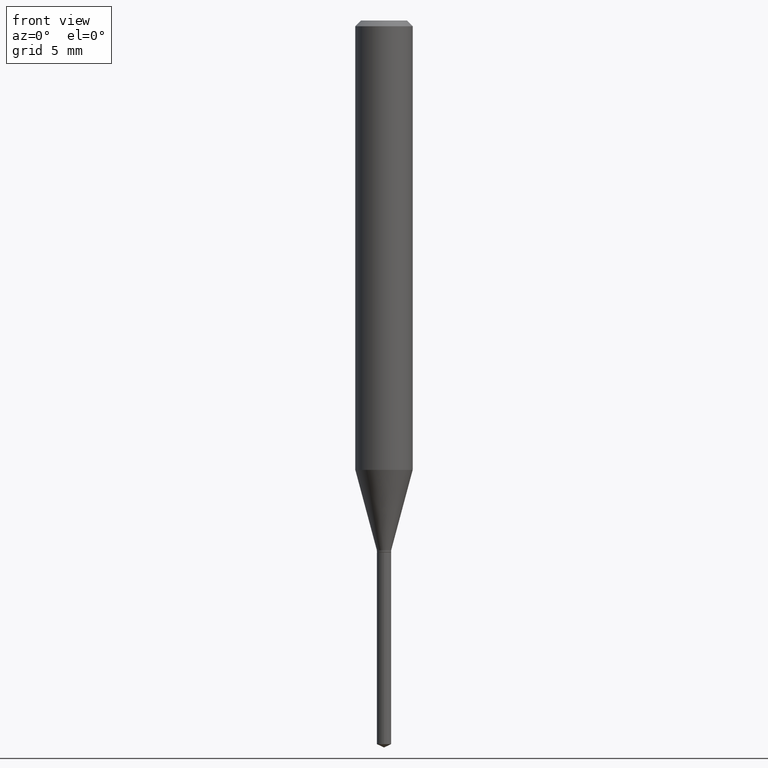
[diagram: clean part render]
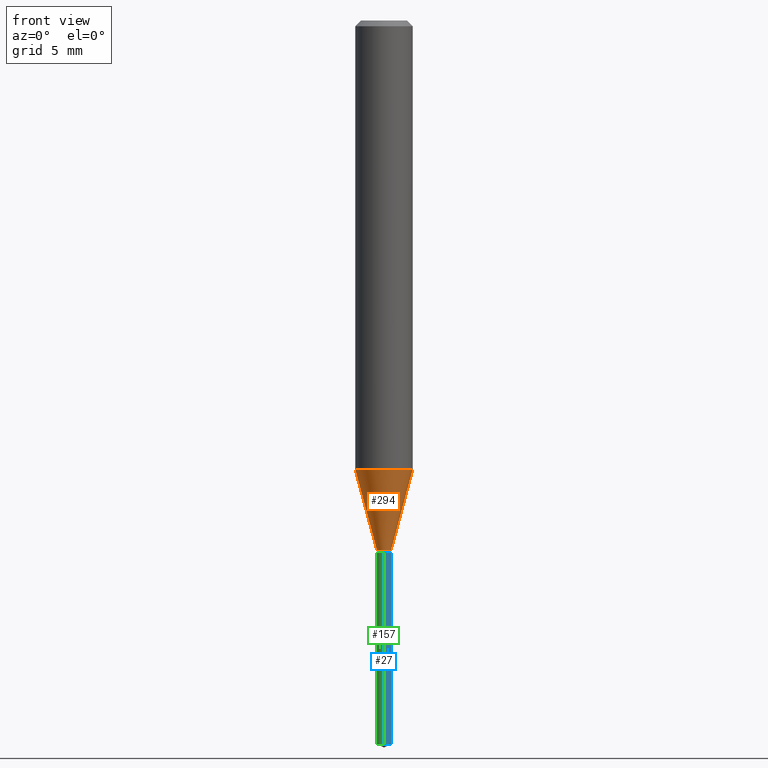
[diagram: same view with three faces highlighted in distinct colors, each labeled with its STEP entity id]
A machine part, front view with three faces highlighted in distinct colors.
Their STEP definitions:

[orange] entity #294 — the highlighted conical surface has half-angle 15 deg.
#7 = CARTESIAN_POINT ( 'NONE',  ( -0.01474999999999999922, -3.701258753948297685E-15, -1.090099999999999847 ) ) ;
#19 = CARTESIAN_POINT ( 'NONE',  ( 0.05905000000000010935, -3.641161664854600986E-15, -0.9247701492246986898 ) ) ;
#22 = VERTEX_POINT ( 'NONE', #147 ) ;
#34 = LINE ( 'NONE', #7, #81 ) ;
#46 = DIRECTION ( 'NONE',  ( -0.2588190451025213501, 5.211531920934551042E-15, 0.9659258262890682012 ) ) ;
#50 = EDGE_LOOP ( 'NONE', ( #140, #180, #108, #391 ) ) ;
#66 = EDGE_CURVE ( 'NONE', #282, #22, #237, .T. ) ;
#75 = CARTESIAN_POINT ( 'NONE',  ( 2.665805545622417047E-29, -3.806063807472912753E-15, -1.090099999999999847 ) ) ;
#80 = AXIS2_PLACEMENT_3D ( 'NONE', #75, #455, #219 ) ;
#81 = VECTOR ( 'NONE', #46, 39.37007874015747433 ) ;
#97 = DIRECTION ( 'NONE',  ( 1.000000000000000000, -6.982962677686267499E-15, 0.000000000000000000 ) ) ;
#108 = ORIENTED_EDGE ( 'NONE', *, *, #235, .T. ) ;
#113 = DIRECTION ( 'NONE',  ( 1.000000000000000000, -6.982962677686250933E-15, 0.000000000000000000 ) ) ;
#118 = CARTESIAN_POINT ( 'NONE',  ( -0.01474999999999999922, -3.708067142559041944E-15, -1.090099999999999847 ) ) ;
#131 = VERTEX_POINT ( 'NONE', #19 ) ;
#140 = ORIENTED_EDGE ( 'NONE', *, *, #208, .F. ) ;
#147 = CARTESIAN_POINT ( 'NONE',  ( 0.01474999999999999922, -3.909062506968784619E-15, -1.090099999999999847 ) ) ;
#161 = LINE ( 'NONE', #226, #470 ) ;
#180 = ORIENTED_EDGE ( 'NONE', *, *, #66, .T. ) ;
#208 = EDGE_CURVE ( 'NONE', #282, #310, #34, .T. ) ;
#219 = DIRECTION ( 'NONE',  ( 1.000000000000000000, -6.982962677686250933E-15, 0.000000000000000000 ) ) ;
#226 = CARTESIAN_POINT ( 'NONE',  ( 0.01474999999999999922, -3.909062506968784619E-15, -1.090099999999999847 ) ) ;
#235 = EDGE_CURVE ( 'NONE', #22, #131, #161, .T. ) ;
#237 = CIRCLE ( 'NONE', #486, 0.01474999999999999922 ) ;
#257 = DIRECTION ( 'NONE',  ( 0.2588190451025213501, 1.565188264969621968E-15, 0.9659258262890682012 ) ) ;
#259 = CARTESIAN_POINT ( 'NONE',  ( -0.05905000000000010935, -2.809242233270886178E-15, -0.9247701492246986898 ) ) ;
#282 = VERTEX_POINT ( 'NONE', #118 ) ;
#289 = CONICAL_SURFACE ( 'NONE', #80, 0.01474999999999999922, 0.2617993877991500740 ) ;
#294 = ADVANCED_FACE ( 'NONE', ( #376 ), #289, .T. ) ;
#310 = VERTEX_POINT ( 'NONE', #259 ) ;
#376 = FACE_OUTER_BOUND ( 'NONE', #50, .T. ) ;
#391 = ORIENTED_EDGE ( 'NONE', *, *, #488, .F. ) ;
#407 = AXIS2_PLACEMENT_3D ( 'NONE', #426, #466, #97 ) ;
#408 = CARTESIAN_POINT ( 'NONE',  ( 2.665805545622417047E-29, -3.806063807472912753E-15, -1.090099999999999847 ) ) ;
#426 = CARTESIAN_POINT ( 'NONE',  ( 2.261496552820174511E-29, -3.228817718737226460E-15, -0.9247701492246986898 ) ) ;
#454 = DIRECTION ( 'NONE',  ( -2.445468806185136597E-29, 3.491481338843145583E-15, 1.000000000000000000 ) ) ;
#455 = DIRECTION ( 'NONE',  ( -2.445468806185136597E-29, 3.491481338843145583E-15, 1.000000000000000000 ) ) ;
#466 = DIRECTION ( 'NONE',  ( -2.445468806185136597E-29, 3.491481338843145583E-15, 1.000000000000000000 ) ) ;
#470 = VECTOR ( 'NONE', #257, 39.37007874015747433 ) ;
#477 = CIRCLE ( 'NONE', #407, 0.05905000000000010935 ) ;
#486 = AXIS2_PLACEMENT_3D ( 'NONE', #408, #454, #113 ) ;
#488 = EDGE_CURVE ( 'NONE', #310, #131, #477, .T. ) ;

[blue] entity #27 — the highlighted cylindrical surface (edge-blend (fillet) strip) has radius 0.3746 mm, axis along (-0, 0, 1).
#6 = AXIS2_PLACEMENT_3D ( 'NONE', #341, #329, #196 ) ;
#14 = VERTEX_POINT ( 'NONE', #63 ) ;
#27 = ADVANCED_FACE ( 'NONE', ( #444 ), #104, .T. ) ;
#49 = DIRECTION ( 'NONE',  ( -2.438240464739478767E-29, 3.501832735204973130E-15, 1.000000000000000000 ) ) ;
#63 = CARTESIAN_POINT ( 'NONE',  ( 1.048050535246511704E-16, 0.01474999999999479852, -1.489221962042213798 ) ) ;
#68 = VERTEX_POINT ( 'NONE', #411 ) ;
#88 = CARTESIAN_POINT ( 'NONE',  ( -1.029986994958456734E-16, -0.01475000000000382429, -1.094499999999999806 ) ) ;
#91 = DIRECTION ( 'NONE',  ( -6.982962677686265922E-15, -1.000000000000000000, 0.000000000000000000 ) ) ;
#93 = VECTOR ( 'NONE', #49, 39.37007874015748143 ) ;
#96 = ORIENTED_EDGE ( 'NONE', *, *, #222, .F. ) ;
#104 = CYLINDRICAL_SURFACE ( 'NONE', #340, 0.01475000000000000096 ) ;
#138 = VERTEX_POINT ( 'NONE', #245 ) ;
#160 = CIRCLE ( 'NONE', #6, 0.01474999999999999922 ) ;
#163 = CARTESIAN_POINT ( 'NONE',  ( 1.048050535246415439E-16, 0.01474999999999617936, -1.094499999999999806 ) ) ;
#169 = LINE ( 'NONE', #88, #93 ) ;
#187 = ORIENTED_EDGE ( 'NONE', *, *, #472, .F. ) ;
#190 = CIRCLE ( 'NONE', #347, 0.01475000000000000443 ) ;
#196 = DIRECTION ( 'NONE',  ( -6.982962677686265922E-15, -1.000000000000000000, 0.000000000000000000 ) ) ;
#202 = CARTESIAN_POINT ( 'NONE',  ( 3.638992668542317999E-29, -5.203676613347582529E-15, -1.489221962042213798 ) ) ;
#222 = EDGE_CURVE ( 'NONE', #138, #68, #160, .T. ) ;
#245 = CARTESIAN_POINT ( 'NONE',  ( -1.029986994958456610E-16, -0.01475000000000382255, -1.094499999999999806 ) ) ;
#262 = CARTESIAN_POINT ( 'NONE',  ( -1.029986994958360221E-16, -0.01475000000000520686, -1.489221962042213798 ) ) ;
#274 = LINE ( 'NONE', #163, #417 ) ;
#285 = VERTEX_POINT ( 'NONE', #262 ) ;
#311 = DIRECTION ( 'NONE',  ( -2.438240464739478767E-29, 3.501832735204973130E-15, 1.000000000000000000 ) ) ;
#316 = ORIENTED_EDGE ( 'NONE', *, *, #423, .T. ) ;
#329 = DIRECTION ( 'NONE',  ( -2.438240464739478767E-29, 3.501832735204973130E-15, 1.000000000000000000 ) ) ;
#333 = DIRECTION ( 'NONE',  ( -2.438240464739478767E-29, 3.501832735204973130E-15, 1.000000000000000000 ) ) ;
#340 = AXIS2_PLACEMENT_3D ( 'NONE', #343, #333, #487 ) ;
#341 = CARTESIAN_POINT ( 'NONE',  ( 2.676565608369631794E-29, -3.821426325363822773E-15, -1.094499999999999806 ) ) ;
#343 = CARTESIAN_POINT ( 'NONE',  ( 2.676565608369631794E-29, -3.821426325363822773E-15, -1.094499999999999806 ) ) ;
#347 = AXIS2_PLACEMENT_3D ( 'NONE', #202, #354, #91 ) ;
#354 = DIRECTION ( 'NONE',  ( -2.438240464739478767E-29, 3.501832735204973130E-15, 1.000000000000000000 ) ) ;
#397 = ORIENTED_EDGE ( 'NONE', *, *, #480, .T. ) ;
#400 = EDGE_LOOP ( 'NONE', ( #316, #397, #96, #187 ) ) ;
#411 = CARTESIAN_POINT ( 'NONE',  ( 1.048050535246512444E-16, 0.01474999999999617416, -1.094499999999999806 ) ) ;
#417 = VECTOR ( 'NONE', #311, 39.37007874015748143 ) ;
#423 = EDGE_CURVE ( 'NONE', #285, #14, #190, .T. ) ;
#444 = FACE_OUTER_BOUND ( 'NONE', #400, .T. ) ;
#472 = EDGE_CURVE ( 'NONE', #285, #138, #169, .T. ) ;
#480 = EDGE_CURVE ( 'NONE', #14, #68, #274, .T. ) ;
#487 = DIRECTION ( 'NONE',  ( -6.982962677686265922E-15, -1.000000000000000000, 0.000000000000000000 ) ) ;

[green] entity #157 — the highlighted cylindrical surface (edge-blend (fillet) strip) has radius 0.3746 mm, axis along (-0, 0, 1).
#10 = AXIS2_PLACEMENT_3D ( 'NONE', #361, #152, #107 ) ;
#14 = VERTEX_POINT ( 'NONE', #63 ) ;
#45 = EDGE_CURVE ( 'NONE', #68, #138, #456, .T. ) ;
#49 = DIRECTION ( 'NONE',  ( -2.438240464739478767E-29, 3.501832735204973130E-15, 1.000000000000000000 ) ) ;
#61 = AXIS2_PLACEMENT_3D ( 'NONE', #264, #460, #360 ) ;
#63 = CARTESIAN_POINT ( 'NONE',  ( 1.048050535246511704E-16, 0.01474999999999479852, -1.489221962042213798 ) ) ;
#68 = VERTEX_POINT ( 'NONE', #411 ) ;
#72 = ORIENTED_EDGE ( 'NONE', *, *, #472, .T. ) ;
#76 = EDGE_LOOP ( 'NONE', ( #475, #175, #72, #98 ) ) ;
#88 = CARTESIAN_POINT ( 'NONE',  ( -1.029986994958456734E-16, -0.01475000000000382429, -1.094499999999999806 ) ) ;
#93 = VECTOR ( 'NONE', #49, 39.37007874015748143 ) ;
#98 = ORIENTED_EDGE ( 'NONE', *, *, #45, .F. ) ;
#107 = DIRECTION ( 'NONE',  ( -6.982962677686265922E-15, -1.000000000000000000, 0.000000000000000000 ) ) ;
#121 = CARTESIAN_POINT ( 'NONE',  ( 2.676565608369631794E-29, -3.821426325363822773E-15, -1.094499999999999806 ) ) ;
#138 = VERTEX_POINT ( 'NONE', #245 ) ;
#152 = DIRECTION ( 'NONE',  ( -2.438240464739478767E-29, 3.501832735204973130E-15, 1.000000000000000000 ) ) ;
#155 = DIRECTION ( 'NONE',  ( -2.438240464739478767E-29, 3.501832735204973130E-15, 1.000000000000000000 ) ) ;
#157 = ADVANCED_FACE ( 'NONE', ( #280 ), #438, .T. ) ;
#163 = CARTESIAN_POINT ( 'NONE',  ( 1.048050535246415439E-16, 0.01474999999999617936, -1.094499999999999806 ) ) ;
#169 = LINE ( 'NONE', #88, #93 ) ;
#175 = ORIENTED_EDGE ( 'NONE', *, *, #345, .T. ) ;
#245 = CARTESIAN_POINT ( 'NONE',  ( -1.029986994958456610E-16, -0.01475000000000382255, -1.094499999999999806 ) ) ;
#262 = CARTESIAN_POINT ( 'NONE',  ( -1.029986994958360221E-16, -0.01475000000000520686, -1.489221962042213798 ) ) ;
#264 = CARTESIAN_POINT ( 'NONE',  ( 3.638992668542317999E-29, -5.203676613347582529E-15, -1.489221962042213798 ) ) ;
#274 = LINE ( 'NONE', #163, #417 ) ;
#280 = FACE_OUTER_BOUND ( 'NONE', #76, .T. ) ;
#281 = CIRCLE ( 'NONE', #61, 0.01475000000000000443 ) ;
#285 = VERTEX_POINT ( 'NONE', #262 ) ;
#296 = DIRECTION ( 'NONE',  ( -6.982962677686265922E-15, -1.000000000000000000, 0.000000000000000000 ) ) ;
#311 = DIRECTION ( 'NONE',  ( -2.438240464739478767E-29, 3.501832735204973130E-15, 1.000000000000000000 ) ) ;
#345 = EDGE_CURVE ( 'NONE', #14, #285, #281, .T. ) ;
#360 = DIRECTION ( 'NONE',  ( -6.982962677686265922E-15, -1.000000000000000000, 0.000000000000000000 ) ) ;
#361 = CARTESIAN_POINT ( 'NONE',  ( 2.676565608369631794E-29, -3.821426325363822773E-15, -1.094499999999999806 ) ) ;
#411 = CARTESIAN_POINT ( 'NONE',  ( 1.048050535246512444E-16, 0.01474999999999617416, -1.094499999999999806 ) ) ;
#417 = VECTOR ( 'NONE', #311, 39.37007874015748143 ) ;
#418 = AXIS2_PLACEMENT_3D ( 'NONE', #121, #155, #296 ) ;
#438 = CYLINDRICAL_SURFACE ( 'NONE', #10, 0.01475000000000000096 ) ;
#456 = CIRCLE ( 'NONE', #418, 0.01474999999999999922 ) ;
#460 = DIRECTION ( 'NONE',  ( -2.438240464739478767E-29, 3.501832735204973130E-15, 1.000000000000000000 ) ) ;
#472 = EDGE_CURVE ( 'NONE', #285, #138, #169, .T. ) ;
#475 = ORIENTED_EDGE ( 'NONE', *, *, #480, .F. ) ;
#480 = EDGE_CURVE ( 'NONE', #14, #68, #274, .T. ) ;